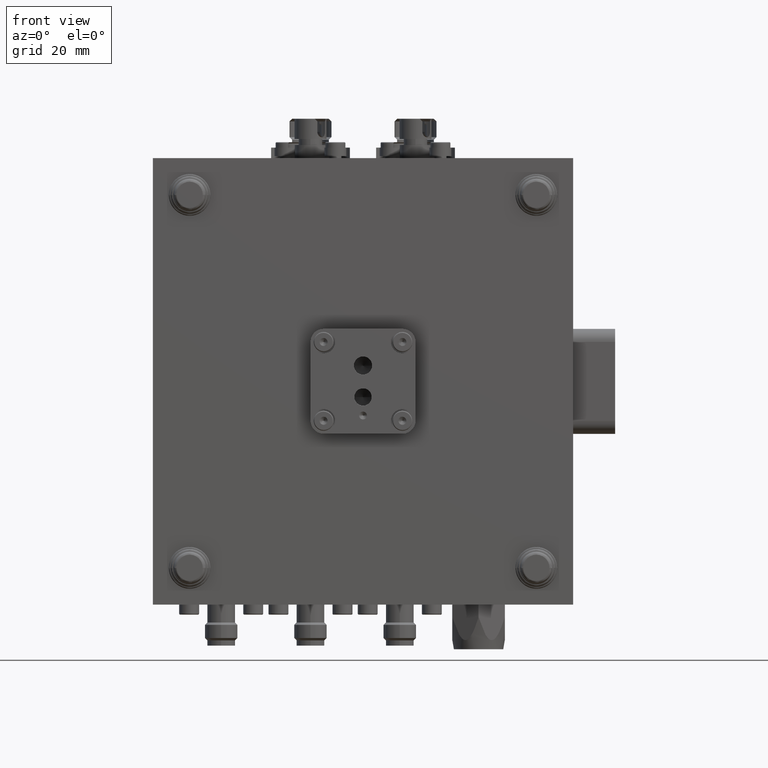
[diagram: clean part render]
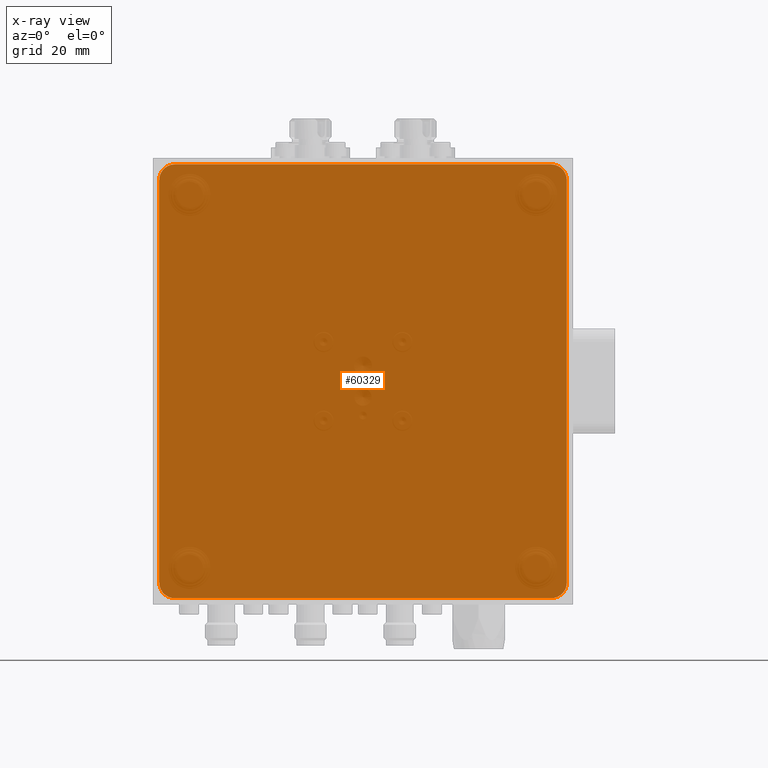
[diagram: x-ray — body ghosted, one internal face saturated and labeled with its STEP entity id]
A machine part, front view, then the same camera in x-ray: the body is ghosted and one INTERNAL B-rep face — a face not visible from any outside direction — is saturated and labeled: STEP entity #60329.
In plain terms, the highlighted planar face has unit normal (0, 1, 0).
Its self-contained STEP definition (entity closure, byte-faithful):
#20865 = AXIS2_PLACEMENT_3D ( 'NONE', #20871, #20934, #20933 ) ;
#20871 = CARTESIAN_POINT ( 'NONE',  ( -38.29999999999999000, 0.0000000000000000000, 35.79999999999999700 ) ) ;
#20910 = CIRCLE ( 'NONE', #20865, 3.000000000000002700 ) ;
#20917 = CARTESIAN_POINT ( 'NONE',  ( 41.30000000000000400, 0.0000000000000000000, 35.79999999999997600 ) ) ;
#20933 = DIRECTION ( 'NONE',  ( 0.0000000000000000000, 0.0000000000000000000, 1.000000000000000000 ) ) ;
#20934 = DIRECTION ( 'NONE',  ( 0.0000000000000000000, 1.000000000000000000, 0.0000000000000000000 ) ) ;
#20945 = CARTESIAN_POINT ( 'NONE',  ( -41.29999999999999000, 0.0000000000000000000, 35.79999999999997600 ) ) ;
#20951 = CARTESIAN_POINT ( 'NONE',  ( 38.29999999999999000, 0.0000000000000000000, -35.79999999999998300 ) ) ;
#20953 = CARTESIAN_POINT ( 'NONE',  ( 38.29999999999996900, 0.0000000000000000000, -38.79999999999999000 ) ) ;
#21037 = CARTESIAN_POINT ( 'NONE',  ( 41.29999999999999000, 0.0000000000000000000, -35.79999999999996200 ) ) ;
#21073 = DIRECTION ( 'NONE',  ( 0.0000000000000000000, 0.0000000000000000000, 1.000000000000000000 ) ) ;
#21074 = DIRECTION ( 'NONE',  ( 0.0000000000000000000, 1.000000000000000000, 0.0000000000000000000 ) ) ;
#21075 = CIRCLE ( 'NONE', #21088, 3.000000000000002700 ) ;
#21088 = AXIS2_PLACEMENT_3D ( 'NONE', #20951, #21074, #21073 ) ;
#21098 = DIRECTION ( 'NONE',  ( -1.938238520644478900E-016, 0.0000000000000000000, -1.000000000000000000 ) ) ;
#21099 = VECTOR ( 'NONE', #21098, 1000.000000000000000 ) ;
#21100 = CARTESIAN_POINT ( 'NONE',  ( 41.29999999999999000, 0.0000000000000000000, -35.79999999999996200 ) ) ;
#21101 = LINE ( 'NONE', #21100, #21099 ) ;
#21102 = CARTESIAN_POINT ( 'NONE',  ( 38.29999999999998300, 0.0000000000000000000, 38.80000000000000400 ) ) ;
#21103 = DIRECTION ( 'NONE',  ( 0.0000000000000000000, 0.0000000000000000000, 1.000000000000000000 ) ) ;
#21104 = DIRECTION ( 'NONE',  ( 0.0000000000000000000, 1.000000000000000000, 0.0000000000000000000 ) ) ;
#21105 = CARTESIAN_POINT ( 'NONE',  ( 38.29999999999999700, 0.0000000000000000000, 35.79999999999999700 ) ) ;
#21106 = CIRCLE ( 'NONE', #21116, 3.000000000000002700 ) ;
#21108 = DIRECTION ( 'NONE',  ( -1.000000000000000000, 0.0000000000000000000, 0.0000000000000000000 ) ) ;
#21109 = VECTOR ( 'NONE', #21108, 1000.000000000000000 ) ;
#21110 = CARTESIAN_POINT ( 'NONE',  ( -38.29999999999998300, 0.0000000000000000000, -38.79999999999999000 ) ) ;
#21111 = LINE ( 'NONE', #21110, #21109 ) ;
#21116 = AXIS2_PLACEMENT_3D ( 'NONE', #21105, #21104, #21103 ) ;
#21120 = DIRECTION ( 'NONE',  ( 1.000000000000000000, 0.0000000000000000000, 0.0000000000000000000 ) ) ;
#21121 = VECTOR ( 'NONE', #21120, 1000.000000000000000 ) ;
#21122 = CARTESIAN_POINT ( 'NONE',  ( -38.29999999999996900, 0.0000000000000000000, 38.80000000000000400 ) ) ;
#21132 = LINE ( 'NONE', #21122, #21121 ) ;
#21133 = CARTESIAN_POINT ( 'NONE',  ( -38.29999999999996900, 0.0000000000000000000, 38.80000000000000400 ) ) ;
#21151 = PLANE ( 'NONE',  #21163 ) ;
#21152 = AXIS2_PLACEMENT_3D ( 'NONE', #21206, #21205, #21204 ) ;
#21158 = FACE_OUTER_BOUND ( 'NONE', #60402, .T. ) ;
#21159 = DIRECTION ( 'NONE',  ( 1.938238520644478900E-016, 0.0000000000000000000, 1.000000000000000000 ) ) ;
#21160 = VECTOR ( 'NONE', #21159, 1000.000000000000000 ) ;
#21161 = CARTESIAN_POINT ( 'NONE',  ( -41.30000000000000400, 0.0000000000000000000, -35.79999999999996200 ) ) ;
#21162 = LINE ( 'NONE', #21161, #21160 ) ;
#21163 = AXIS2_PLACEMENT_3D ( 'NONE', #21191, #21190, #21189 ) ;
#21189 = DIRECTION ( 'NONE',  ( 0.0000000000000000000, 0.0000000000000000000, 1.000000000000000000 ) ) ;
#21190 = DIRECTION ( 'NONE',  ( 0.0000000000000000000, 1.000000000000000000, 0.0000000000000000000 ) ) ;
#21191 = CARTESIAN_POINT ( 'NONE',  ( -38.29999999999999000, 0.0000000000000000000, 35.79999999999999700 ) ) ;
#21204 = DIRECTION ( 'NONE',  ( 0.0000000000000000000, 0.0000000000000000000, 1.000000000000000000 ) ) ;
#21205 = DIRECTION ( 'NONE',  ( 0.0000000000000000000, 1.000000000000000000, 0.0000000000000000000 ) ) ;
#21206 = CARTESIAN_POINT ( 'NONE',  ( -38.29999999999999700, 0.0000000000000000000, -35.79999999999998300 ) ) ;
#21207 = CARTESIAN_POINT ( 'NONE',  ( -41.30000000000000400, 0.0000000000000000000, -35.79999999999996200 ) ) ;
#21218 = CIRCLE ( 'NONE', #21152, 3.000000000000002700 ) ;
#21234 = CARTESIAN_POINT ( 'NONE',  ( -38.29999999999998300, 0.0000000000000000000, -38.79999999999999000 ) ) ;
#59727 = ORIENTED_EDGE ( 'NONE', *, *, #60295, .F. ) ;
#59769 = ORIENTED_EDGE ( 'NONE', *, *, #60312, .F. ) ;
#60223 = ORIENTED_EDGE ( 'NONE', *, *, #60308, .F. ) ;
#60250 = VERTEX_POINT ( 'NONE', #20917 ) ;
#60256 = EDGE_CURVE ( 'NONE', #60273, #60320, #20910, .T. ) ;
#60273 = VERTEX_POINT ( 'NONE', #20945 ) ;
#60291 = VERTEX_POINT ( 'NONE', #20953 ) ;
#60295 = EDGE_CURVE ( 'NONE', #60301, #60291, #21075, .T. ) ;
#60301 = VERTEX_POINT ( 'NONE', #21037 ) ;
#60308 = EDGE_CURVE ( 'NONE', #60291, #60353, #21111, .T. ) ;
#60311 = EDGE_CURVE ( 'NONE', #60314, #60250, #21106, .T. ) ;
#60312 = EDGE_CURVE ( 'NONE', #60250, #60301, #21101, .T. ) ;
#60314 = VERTEX_POINT ( 'NONE', #21102 ) ;
#60320 = VERTEX_POINT ( 'NONE', #21133 ) ;
#60322 = EDGE_CURVE ( 'NONE', #60320, #60314, #21132, .T. ) ;
#60324 = EDGE_CURVE ( 'NONE', #60350, #60273, #21162, .T. ) ;
#60329 = ADVANCED_FACE ( 'NONE', ( #21158 ), #21151, .F. ) ;
#60331 = ORIENTED_EDGE ( 'NONE', *, *, #60340, .F. ) ;
#60332 = ORIENTED_EDGE ( 'NONE', *, *, #60324, .F. ) ;
#60340 = EDGE_CURVE ( 'NONE', #60353, #60350, #21218, .T. ) ;
#60346 = ORIENTED_EDGE ( 'NONE', *, *, #60256, .F. ) ;
#60347 = ORIENTED_EDGE ( 'NONE', *, *, #60311, .F. ) ;
#60350 = VERTEX_POINT ( 'NONE', #21207 ) ;
#60353 = VERTEX_POINT ( 'NONE', #21234 ) ;
#60383 = ORIENTED_EDGE ( 'NONE', *, *, #60322, .F. ) ;
#60402 = EDGE_LOOP ( 'NONE', ( #60346, #60332, #60331, #60223, #59727, #59769, #60347, #60383 ) ) ;